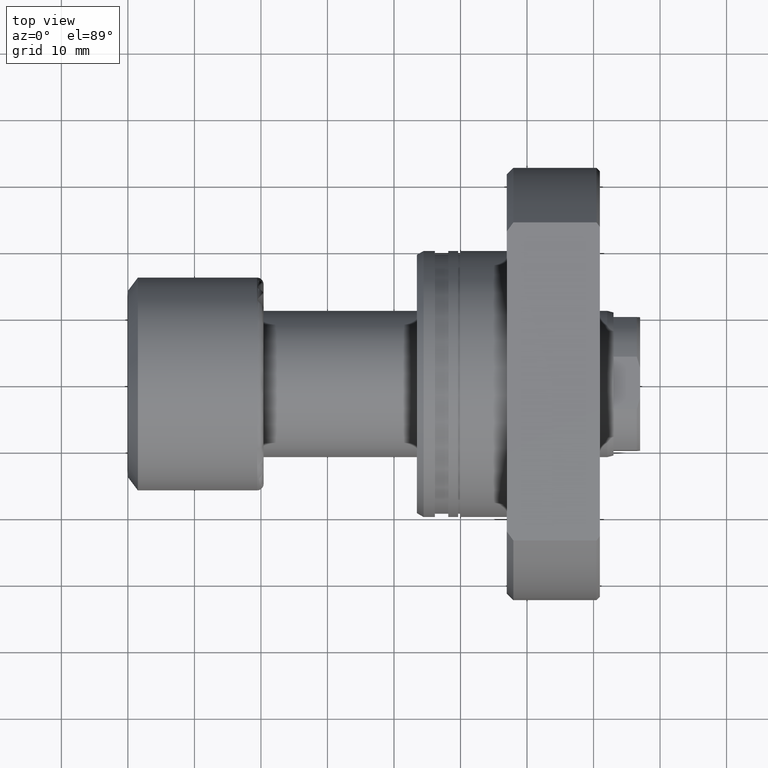
[diagram: clean part render]
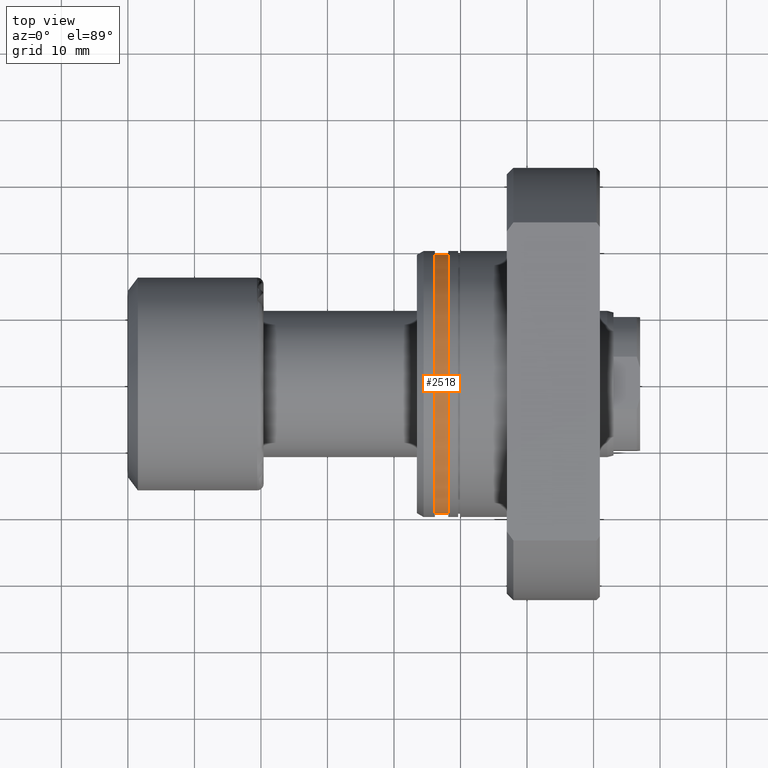
[diagram: same view with one face highlighted and labeled with its STEP entity id]
A machine part, top view. The second image highlights one B-rep face of the part: STEP entity #2518.
In plain terms, the highlighted cylindrical surface (partial cylindrical patch) has radius 19.5 mm, axis along (1, 0, 0).
Its self-contained STEP definition (entity closure, byte-faithful):
#204 = AXIS2_PLACEMENT_3D ( 'NONE', #835, #2552, #813 ) ;
#256 = ORIENTED_EDGE ( 'NONE', *, *, #2438, .F. ) ;
#289 = VERTEX_POINT ( 'NONE', #580 ) ;
#311 = VECTOR ( 'NONE', #1411, 1000.000000000000000 ) ;
#428 = FACE_OUTER_BOUND ( 'NONE', #493, .T. ) ;
#471 = CARTESIAN_POINT ( 'NONE',  ( 27.50000000000000355, -19.49999999999999645, 2.388061258337338544E-15 ) ) ;
#493 = EDGE_LOOP ( 'NONE', ( #1737, #2423, #256, #1399 ) ) ;
#580 = CARTESIAN_POINT ( 'NONE',  ( 2.699999999999786127, -19.49999999999999289, 2.388061258337338150E-15 ) ) ;
#642 = CYLINDRICAL_SURFACE ( 'NONE', #875, 19.49999999999999645 ) ;
#813 = DIRECTION ( 'NONE',  ( 0.000000000000000000, 1.000000000000000000, 0.000000000000000000 ) ) ;
#835 = CARTESIAN_POINT ( 'NONE',  ( 4.699999999998548894, 6.279098133808125197E-17, 0.000000000000000000 ) ) ;
#875 = AXIS2_PLACEMENT_3D ( 'NONE', #2665, #1412, #1143 ) ;
#936 = CARTESIAN_POINT ( 'NONE',  ( 4.699999999998548894, -19.49999999999999645, 2.388061258337338544E-15 ) ) ;
#1102 = VERTEX_POINT ( 'NONE', #936 ) ;
#1120 = LINE ( 'NONE', #2386, #311 ) ;
#1143 = DIRECTION ( 'NONE',  ( 0.000000000000000000, 1.000000000000000000, 0.000000000000000000 ) ) ;
#1225 = EDGE_CURVE ( 'NONE', #1725, #2934, #1120, .T. ) ;
#1399 = ORIENTED_EDGE ( 'NONE', *, *, #1225, .F. ) ;
#1411 = DIRECTION ( 'NONE',  ( 1.000000000000000000, 1.335978326342566810E-17, -0.000000000000000000 ) ) ;
#1412 = DIRECTION ( 'NONE',  ( 1.000000000000000000, 1.335978326342566810E-17, -0.000000000000000000 ) ) ;
#1457 = DIRECTION ( 'NONE',  ( 1.000000000000000000, 1.335978326342566810E-17, -0.000000000000000000 ) ) ;
#1519 = CARTESIAN_POINT ( 'NONE',  ( 2.699999999999786127, 3.607141481124643254E-17, 0.000000000000000000 ) ) ;
#1725 = VERTEX_POINT ( 'NONE', #2203 ) ;
#1737 = ORIENTED_EDGE ( 'NONE', *, *, #1904, .T. ) ;
#1904 = EDGE_CURVE ( 'NONE', #1725, #289, #2427, .T. ) ;
#2021 = CIRCLE ( 'NONE', #204, 19.49999999999999645 ) ;
#2203 = CARTESIAN_POINT ( 'NONE',  ( 2.699999999999785683, 19.49999999999999289, 0.000000000000000000 ) ) ;
#2300 = DIRECTION ( 'NONE',  ( 1.000000000000000000, 1.335978326342566810E-17, -0.000000000000000000 ) ) ;
#2386 = CARTESIAN_POINT ( 'NONE',  ( 27.50000000000000355, 19.49999999999999645, 0.000000000000000000 ) ) ;
#2423 = ORIENTED_EDGE ( 'NONE', *, *, #3154, .T. ) ;
#2427 = CIRCLE ( 'NONE', #2531, 19.49999999999999289 ) ;
#2430 = LINE ( 'NONE', #471, #2642 ) ;
#2438 = EDGE_CURVE ( 'NONE', #2934, #1102, #2021, .T. ) ;
#2518 = ADVANCED_FACE ( 'NONE', ( #428 ), #642, .T. ) ;
#2531 = AXIS2_PLACEMENT_3D ( 'NONE', #1519, #2300, #2783 ) ;
#2552 = DIRECTION ( 'NONE',  ( 1.000000000000000000, 1.335978326342566810E-17, -0.000000000000000000 ) ) ;
#2642 = VECTOR ( 'NONE', #1457, 1000.000000000000000 ) ;
#2665 = CARTESIAN_POINT ( 'NONE',  ( 27.50000000000000355, 3.673940397442059375E-16, 0.000000000000000000 ) ) ;
#2783 = DIRECTION ( 'NONE',  ( -2.224004456380522643E-17, 1.000000000000000000, 0.000000000000000000 ) ) ;
#2934 = VERTEX_POINT ( 'NONE', #3025 ) ;
#3025 = CARTESIAN_POINT ( 'NONE',  ( 4.699999999998548894, 19.49999999999999645, 0.000000000000000000 ) ) ;
#3154 = EDGE_CURVE ( 'NONE', #289, #1102, #2430, .T. ) ;